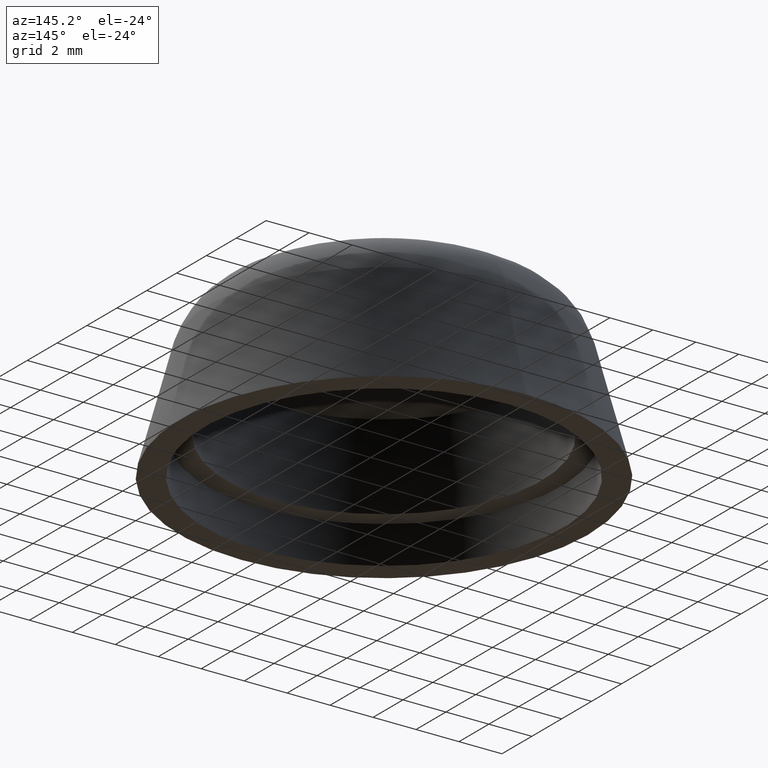
[diagram: clean part render]
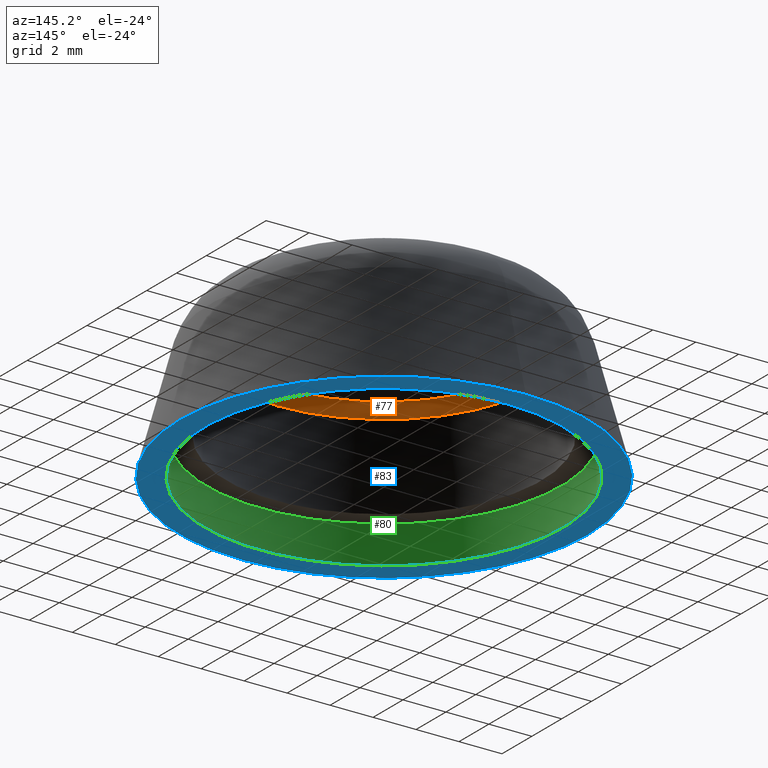
[diagram: same view with three faces highlighted in distinct colors, each labeled with its STEP entity id]
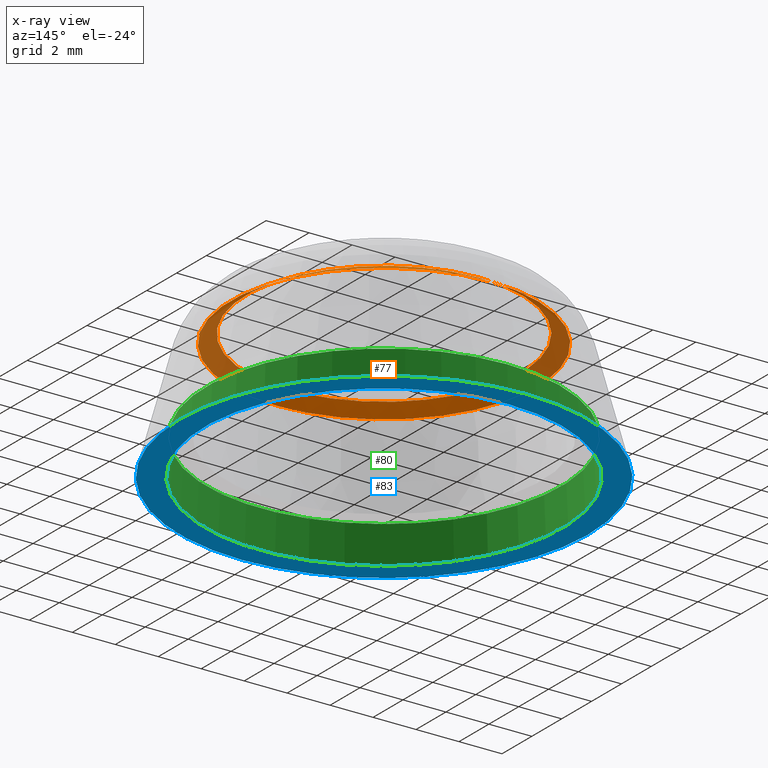
[diagram: x-ray of the same camera — body ghosted, the three highlighted faces saturated]
A machine part, auxiliary view with three faces highlighted in distinct colors.
The next image is the same camera in x-ray (body ghosted, the three faces saturated) — at least one of them is partly hidden behind the body in this view.
Their STEP definitions:

[orange] entity #77 — the highlighted conical surface has half-angle 60 deg.
#77 = ADVANCED_FACE( '', ( #90, #91 ), #92, .F. );
#90 = FACE_OUTER_BOUND( '', #150, .T. );
#91 = FACE_BOUND( '', #151, .T. );
#92 = CONICAL_SURFACE( '', #152, 6.40000000000001, 1.04719755119660 );
#150 = EDGE_LOOP( '', ( #177 ) );
#151 = EDGE_LOOP( '', ( #178 ) );
#152 = AXIS2_PLACEMENT_3D( '', #179, #180, #181 );
#177 = ORIENTED_EDGE( '', *, *, #215, .T. );
#178 = ORIENTED_EDGE( '', *, *, #214, .F. );
#179 = CARTESIAN_POINT( '', ( 0.000000000000000, -2.39945715491542E-032, 6.00000000000000 ) );
#180 = DIRECTION( '', ( 0.000000000000000, -6.12303176911189E-017, -1.00000000000000 ) );
#181 = DIRECTION( '', ( 0.000000000000000, 1.00000000000000, -6.12303176911189E-017 ) );
#214 = EDGE_CURVE( '', #223, #223, #224, .T. );
#215 = EDGE_CURVE( '', #225, #225, #226, .T. );
#223 = VERTEX_POINT( '', #239 );
#224 = CIRCLE( '', #240, 6.40000000000001 );
#225 = VERTEX_POINT( '', #241 );
#226 = CIRCLE( '', #242, 7.12184121559185 );
#239 = CARTESIAN_POINT( '', ( 0.000000000000000, 6.40000000000001, 6.00000000000000 ) );
#240 = AXIS2_PLACEMENT_3D( '', #256, #257, #258 );
#241 = CARTESIAN_POINT( '', ( 0.000000000000000, 7.12184121559185, 5.58324477986588 ) );
#242 = AXIS2_PLACEMENT_3D( '', #259, #260, #261 );
#256 = CARTESIAN_POINT( '', ( 0.000000000000000, -2.39945715491542E-032, 6.00000000000000 ) );
#257 = DIRECTION( '', ( 0.000000000000000, -6.12303176911189E-017, -1.00000000000000 ) );
#258 = DIRECTION( '', ( 0.000000000000000, 1.00000000000000, -6.12303176911189E-017 ) );
#259 = CARTESIAN_POINT( '', ( 0.000000000000000, -2.55180545282442E-017, 5.58324477986588 ) );
#260 = DIRECTION( '', ( 0.000000000000000, -6.12303176911189E-017, -1.00000000000000 ) );
#261 = DIRECTION( '', ( 0.000000000000000, 1.00000000000000, -6.12303176911189E-017 ) );

[blue] entity #83 — the highlighted planar face has unit normal (0, -0, -1).
#83 = ADVANCED_FACE( '', ( #108, #109 ), #110, .T. );
#108 = FACE_OUTER_BOUND( '', #168, .T. );
#109 = FACE_BOUND( '', #169, .T. );
#110 = PLANE( '', #170 );
#168 = EDGE_LOOP( '', ( #207 ) );
#169 = EDGE_LOOP( '', ( #208 ) );
#170 = AXIS2_PLACEMENT_3D( '', #209, #210, #211 );
#207 = ORIENTED_EDGE( '', *, *, #220, .T. );
#208 = ORIENTED_EDGE( '', *, *, #218, .F. );
#209 = CARTESIAN_POINT( '', ( -1.53169721701037E-015, -8.33844667569823, 0.000000000000000 ) );
#210 = DIRECTION( '', ( 0.000000000000000, -6.12303176911189E-017, -1.00000000000000 ) );
#211 = DIRECTION( '', ( 0.000000000000000, 1.00000000000000, -6.12303176911189E-017 ) );
#218 = EDGE_CURVE( '', #231, #231, #232, .T. );
#220 = EDGE_CURVE( '', #235, #235, #236, .T. );
#231 = VERTEX_POINT( '', #247 );
#232 = CIRCLE( '', #248, 8.33844667569825 );
#235 = VERTEX_POINT( '', #251 );
#236 = CIRCLE( '', #252, 9.49344667569824 );
#247 = CARTESIAN_POINT( '', ( 0.000000000000000, 8.33844667569825, -1.37792747699186E-015 ) );
#248 = AXIS2_PLACEMENT_3D( '', #268, #269, #270 );
#251 = CARTESIAN_POINT( '', ( 0.000000000000000, 9.49344667569824, -1.44864849392510E-015 ) );
#252 = AXIS2_PLACEMENT_3D( '', #274, #275, #276 );
#268 = CARTESIAN_POINT( '', ( 0.000000000000000, -3.67381906146713E-016, -8.67361737988404E-016 ) );
#269 = DIRECTION( '', ( 0.000000000000000, -6.12303176911189E-017, -1.00000000000000 ) );
#270 = DIRECTION( '', ( 0.000000000000000, 1.00000000000000, -6.12303176911189E-017 ) );
#274 = CARTESIAN_POINT( '', ( 0.000000000000000, -3.67381906146713E-016, -8.67361737988404E-016 ) );
#275 = DIRECTION( '', ( 0.000000000000000, -6.12303176911189E-017, -1.00000000000000 ) );
#276 = DIRECTION( '', ( 0.000000000000000, 1.00000000000000, -6.12303176911189E-017 ) );

[green] entity #80 — the highlighted conical surface has half-angle 3 deg.
#80 = ADVANCED_FACE( '', ( #99, #100 ), #101, .F. );
#99 = FACE_OUTER_BOUND( '', #159, .T. );
#100 = FACE_BOUND( '', #160, .T. );
#101 = CONICAL_SURFACE( '', #161, 8.24882937312424, 0.0523598775598382 );
#159 = EDGE_LOOP( '', ( #192 ) );
#160 = EDGE_LOOP( '', ( #193 ) );
#161 = AXIS2_PLACEMENT_3D( '', #194, #195, #196 );
#192 = ORIENTED_EDGE( '', *, *, #218, .T. );
#193 = ORIENTED_EDGE( '', *, *, #217, .F. );
#194 = CARTESIAN_POINT( '', ( 0.000000000000000, -2.62678062894900E-016, 1.71000000000000 ) );
#195 = DIRECTION( '', ( 0.000000000000000, -6.12303176911189E-017, -1.00000000000000 ) );
#196 = DIRECTION( '', ( 0.000000000000000, 1.00000000000000, -6.12303176911189E-017 ) );
#217 = EDGE_CURVE( '', #229, #229, #230, .T. );
#218 = EDGE_CURVE( '', #231, #231, #232, .T. );
#229 = VERTEX_POINT( '', #245 );
#230 = CIRCLE( '', #246, 8.24882937312424 );
#231 = VERTEX_POINT( '', #247 );
#232 = CIRCLE( '', #248, 8.33844667569825 );
#245 = CARTESIAN_POINT( '', ( 0.000000000000000, 8.24882937312424, 1.71000000000000 ) );
#246 = AXIS2_PLACEMENT_3D( '', #265, #266, #267 );
#247 = CARTESIAN_POINT( '', ( 0.000000000000000, 8.33844667569825, -1.37792747699186E-015 ) );
#248 = AXIS2_PLACEMENT_3D( '', #268, #269, #270 );
#265 = CARTESIAN_POINT( '', ( 0.000000000000000, -2.62678062894900E-016, 1.71000000000000 ) );
#266 = DIRECTION( '', ( 0.000000000000000, -6.12303176911189E-017, -1.00000000000000 ) );
#267 = DIRECTION( '', ( 0.000000000000000, 1.00000000000000, -6.12303176911189E-017 ) );
#268 = CARTESIAN_POINT( '', ( 0.000000000000000, -3.67381906146713E-016, -8.67361737988404E-016 ) );
#269 = DIRECTION( '', ( 0.000000000000000, -6.12303176911189E-017, -1.00000000000000 ) );
#270 = DIRECTION( '', ( 0.000000000000000, 1.00000000000000, -6.12303176911189E-017 ) );